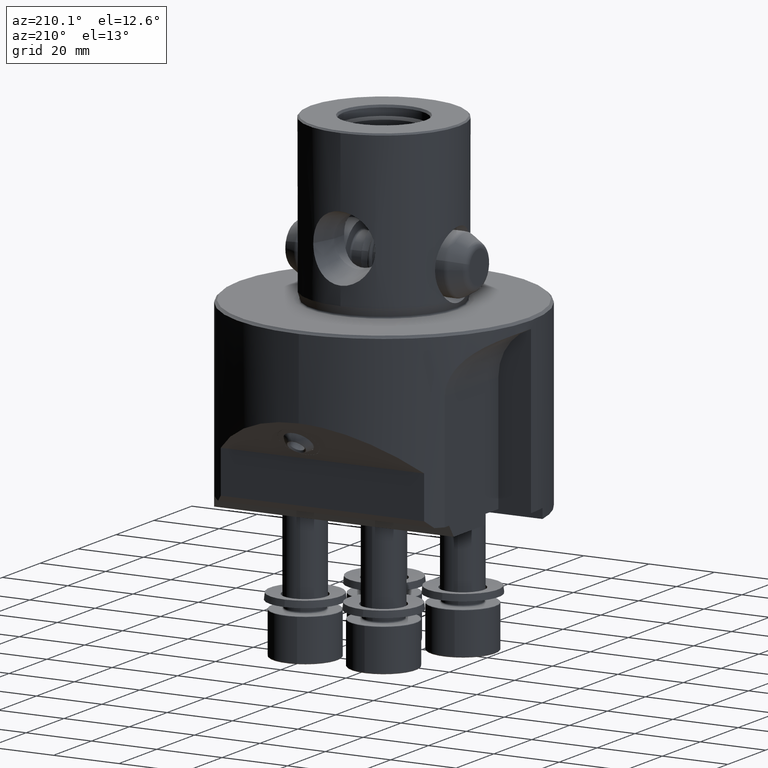
[diagram: clean part render]
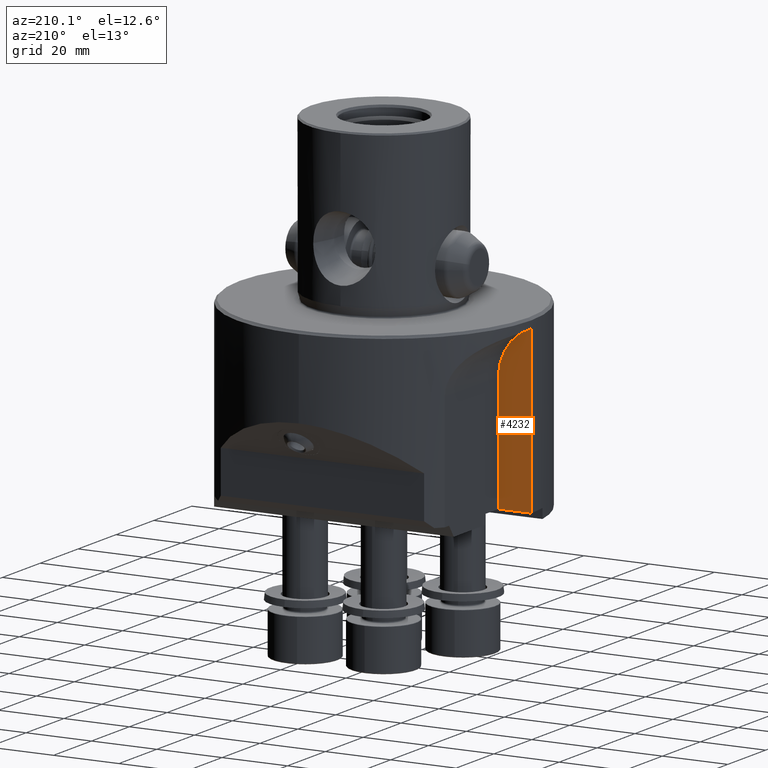
[diagram: same view with one face highlighted and labeled with its STEP entity id]
A machine part, auxiliary view. The second image highlights one B-rep face of the part: STEP entity #4232.
In plain terms, the highlighted planar face has unit normal (0, -1, 0).
Its self-contained STEP definition (entity closure, byte-faithful):
#2260=VERTEX_POINT('NONE',#6367);
#2276=EDGE_CURVE('NONE',#3100,#5130,#6386,.T.);
#2742=EDGE_CURVE('NONE',#5854,#3100,#6914,.T.);
#3100=VERTEX_POINT('NONE',#7311);
#4232=ADVANCED_FACE('NONE',(#8592),#8593,.F.);
#4470=EDGE_CURVE('NONE',#5130,#2260,#8864,.T.);
#5130=VERTEX_POINT('NONE',#9608);
#5194=EDGE_CURVE('NONE',#2260,#5854,#9677,.T.);
#5854=VERTEX_POINT('NONE',#10417);
#6367=CARTESIAN_POINT('',(-35.0,0.0,-17.142135623731));
#6386=LINE('',#11096,#11097);
#6914=LINE('',#11828,#11829);
#7311=CARTESIAN_POINT('',(-45.0,1.73472347597681E-015,-53.0));
#8592=FACE_OUTER_BOUND('',#14313,.T.);
#8593=PLANE('',#14314);
#8864=CIRCLE('',#14697,15.0);
#9608=CARTESIAN_POINT('',(-45.0,0.0,-2.99999999999999));
#9677=LINE('',#16036,#16037);
#10417=CARTESIAN_POINT('',(-35.0,0.0,-53.0));
#11096=CARTESIAN_POINT('',(-45.0,0.0,52.3300323435718));
#11097=VECTOR('',#17998,1000.0);
#11828=CARTESIAN_POINT('',(-50.0,0.0,-53.0));
#11829=VECTOR('',#18666,1000.0);
#14313=EDGE_LOOP('',(#20800,#20801,#20802,#20803));
#14314=AXIS2_PLACEMENT_3D('',#20804,#20805,#20806);
#14697=AXIS2_PLACEMENT_3D('',#21175,#21176,#21177);
#16036=CARTESIAN_POINT('',(-35.0,0.0,-60.0));
#16037=VECTOR('',#22163,1000.0);
#17998=DIRECTION('',(0.0,0.0,1.0));
#18666=DIRECTION('',(-1.0,0.0,0.0));
#20800=ORIENTED_EDGE('',*,*,#5194,.T.);
#20801=ORIENTED_EDGE('',*,*,#2742,.T.);
#20802=ORIENTED_EDGE('',*,*,#2276,.T.);
#20803=ORIENTED_EDGE('',*,*,#4470,.T.);
#20804=CARTESIAN_POINT('',(-50.0,0.0,-17.1421356237309));
#20805=DIRECTION('',(0.0,-1.0,0.0));
#20806=DIRECTION('',(1.0,0.0,-0.0));
#21175=CARTESIAN_POINT('',(-50.0,0.0,-17.1421356237309));
#21176=DIRECTION('',(0.0,1.0,0.0));
#21177=DIRECTION('',(0.0,0.0,1.0));
#22163=DIRECTION('',(-3.23809597369923E-016,0.0,-1.0));